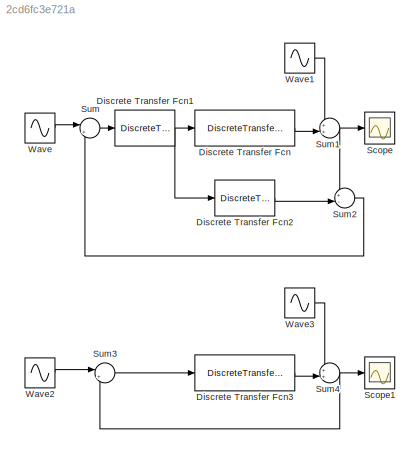
MODEL slx_2cd6fc3e721a
KIND model
CONFIG AbsTol = auto
CONFIG FixedStep = auto
CONFIG MaxStep = auto
CONFIG MinStep = auto
CONFIG RelTol = 1e-3
CONFIG SampleTimeConstraint = Unconstrained
CONFIG Solver = VariableStepAuto
CONFIG SolverMode = Auto
CONFIG SolverName = VariableStepAuto
CONFIG StartTime = 0.0
CONFIG StopTime = 500
BLOCK [DiscreteTransferFcn] Discrete Transfer Fcn
  Denominator = [1 -1.8187  0.8187]
  InputPortMap = u0
  Numerator = [0.4683e-04 0.4381e-04]
  Ports = [1, 1]
BLOCK [DiscreteTransferFcn] Discrete Transfer Fcn1
  Denominator = [1]
  InputPortMap = u0
  Numerator = [200]
  Ports = [1, 1]
BLOCK [DiscreteTransferFcn] Discrete Transfer Fcn2
  Denominator = [200]
  InputPortMap = u0
  Numerator = [0]
  Ports = [1, 1]
BLOCK [DiscreteTransferFcn] Discrete Transfer Fcn3
  Denominator = [1 -1.8187  0.8187]
  InputPortMap = u0
  Numerator = [0.4683e-04 0.4381e-04]
  Ports = [1, 1]
BLOCK [Scope] Scope
  Ports = [1]
  ScopeSpecificationString = Simulink.scopes.TimeScopeBlockCfg('CurrentConfiguration', extmgr.ConfigurationSet(extmgr.Configuration('Core','General UI',true,'FigureColor',[1 1 1]),extmgr.Configuration('Core','Source UI',true),extmgr.Configuration('Sources','WiredSimulink',true),extmgr.Configuration('Visuals','Time Domain',true,'SerializedDisplays',{struct('MinYLimReal','-72.06023','MaxYLimReal','72.06028','YLabelReal','','Min...<+1505ch>
BLOCK [Scope] Scope1
  Ports = [1]
  ScopeSpecificationString = Simulink.scopes.TimeScopeBlockCfg('CurrentConfiguration', extmgr.ConfigurationSet(extmgr.Configuration('Core','General UI',true,'FigureColor',[1 1 1]),extmgr.Configuration('Core','Source UI',true),extmgr.Configuration('Sources','WiredSimulink',true,'DataLoggingVariableName','ScopeData1'),extmgr.Configuration('Visuals','Time Domain',true,'SerializedDisplays',{struct('MinYLimReal','-8.6898','MaxYLim...<+1539ch>
BLOCK [Sum] Sum
  IconShape = round
  InputSameDT = off
  Inputs = |+-
  OutDataTypeStr = Inherit: Inherit via internal rule
  Ports = [2, 1]
  SaturateOnIntegerOverflow = off
BLOCK [Sum] Sum1
  IconShape = round
  InputSameDT = off
  Inputs = ++|
  OutDataTypeStr = Inherit: Inherit via internal rule
  Ports = [2, 1]
  SaturateOnIntegerOverflow = off
BLOCK [Sum] Sum2
  IconShape = round
  InputSameDT = off
  Inputs = +-|
  OutDataTypeStr = Inherit: Inherit via internal rule
  Ports = [2, 1]
  SaturateOnIntegerOverflow = off
BLOCK [Sum] Sum3
  IconShape = round
  InputSameDT = off
  Inputs = |+-
  OutDataTypeStr = Inherit: Inherit via internal rule
  Ports = [2, 1]
  SaturateOnIntegerOverflow = off
BLOCK [Sum] Sum4
  IconShape = round
  InputSameDT = off
  Inputs = ++|
  OutDataTypeStr = Inherit: Inherit via internal rule
  Ports = [2, 1]
  SaturateOnIntegerOverflow = off
BLOCK [Sin] Wave
  Amplitude = 50
  Ports = [0, 1]
  SampleTime = 1
  Samples = 100
  SineType = Sample based
BLOCK [Sin] Wave1
  Amplitude = 10
  Bias = 5
  Ports = [0, 1]
  SampleTime = 1
  Samples = 60
  SineType = Sample based
BLOCK [Sin] Wave2
  Amplitude = 50
  Ports = [0, 1]
  SampleTime = 1
  Samples = 100
  SineType = Sample based
BLOCK [Sin] Wave3
  Amplitude = 10
  Bias = 5
  Ports = [0, 1]
  SampleTime = 1
  Samples = 60
  SineType = Sample based
NET Discrete Transfer Fcn1:1 -> Discrete Transfer Fcn2:1, Discrete Transfer Fcn:1
LINE Discrete Transfer Fcn2:1 -> Sum2:2
LINE Discrete Transfer Fcn3:1 -> Sum4:2
LINE Discrete Transfer Fcn:1 -> Sum1:2
NET Sum1:1 -> Scope:1, Sum2:1
LINE Sum2:1 -> Sum:2
LINE Sum3:1 -> Discrete Transfer Fcn3:1
NET Sum4:1 -> Scope1:1, Sum3:2
LINE Sum:1 -> Discrete Transfer Fcn1:1
LINE Wave1:1 -> Sum1:1
LINE Wave2:1 -> Sum3:1
LINE Wave3:1 -> Sum4:1
LINE Wave:1 -> Sum:1
note: NET lines group one-source signal fan-out (src -> all destinations, sorted); 1:1 wires keep LINE
